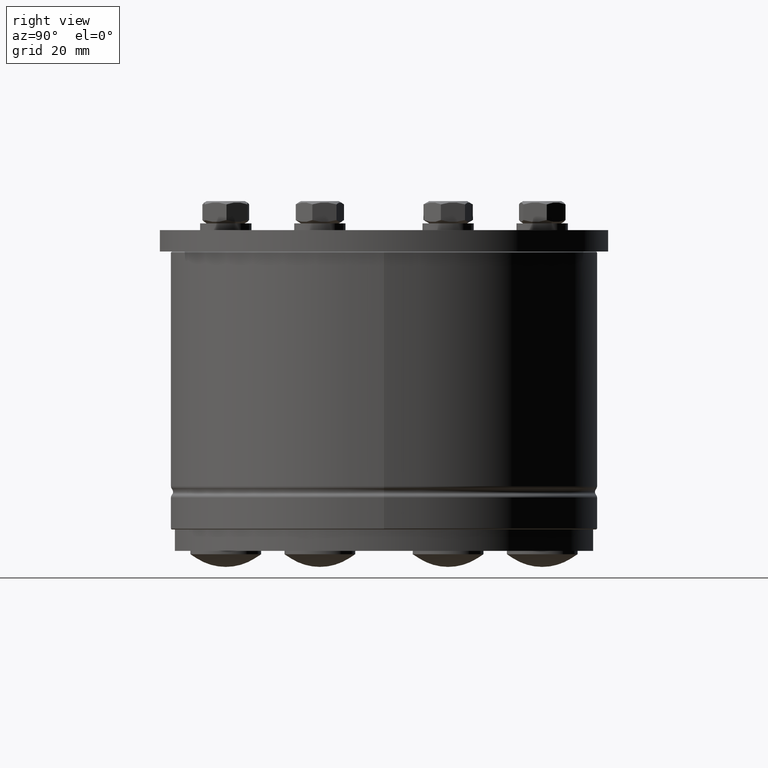
[diagram: clean part render]
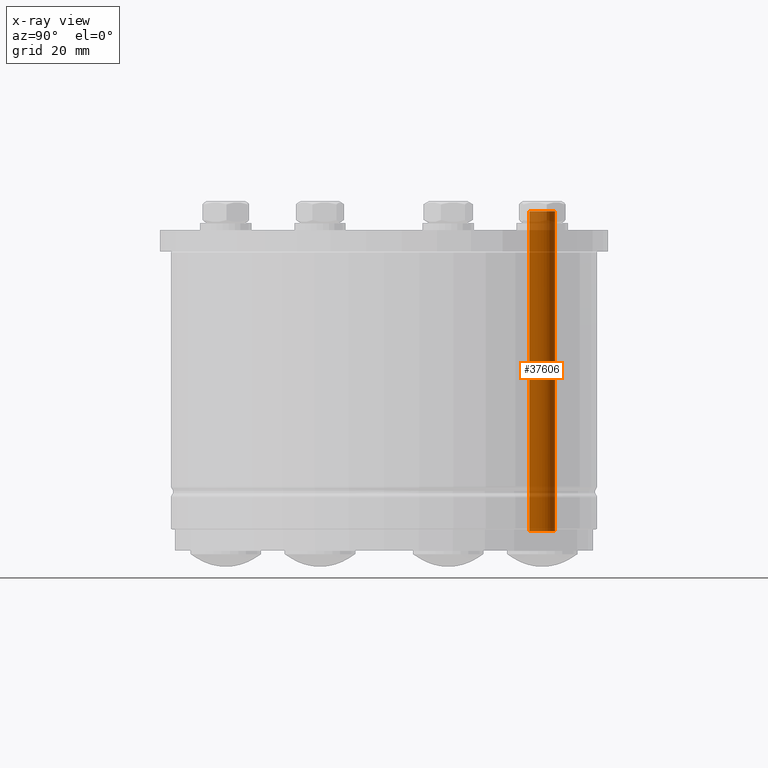
[diagram: x-ray — body ghosted, one internal face saturated and labeled with its STEP entity id]
A machine part, right view, then the same camera in x-ray: the body is ghosted and one INTERNAL B-rep face — a face not visible from any outside direction — is saturated and labeled: STEP entity #37606.
In plain terms, the highlighted cylindrical surface (bore or boss wall) has radius 3 mm, axis along (-0, 0, 1).
Its self-contained STEP definition (entity closure, byte-faithful):
#37537=CARTESIAN_POINT('',(79.386549999999986,3.000000000000009,3.673819E-016));
#37538=VERTEX_POINT('',#37537);
#37539=CARTESIAN_POINT('',(79.386549999999986,-7.830199E-031,0.0));
#37540=DIRECTION('',(1.0,0.0,0.0));
#37541=DIRECTION('',(0.0,-1.0,0.0));
#37542=AXIS2_PLACEMENT_3D('',#37539,#37540,#37541);
#37543=CIRCLE('',#37542,3.000000000000009);
#37544=EDGE_CURVE('',#37538,#37538,#37543,.T.);
#37560=CARTESIAN_POINT('',(71.0,-7.041547E-031,0.0));
#37561=DIRECTION('',(1.0,-9.403775E-033,0.0));
#37562=DIRECTION('',(0.0,1.0,0.0));
#37563=AXIS2_PLACEMENT_3D('',#37560,#37561,#37562);
#37564=CYLINDRICAL_SURFACE('',#37563,3.000000000000009);
#37565=CARTESIAN_POINT('',(4.600000000000003,-2.775558E-016,2.999999999999998));
#37566=VERTEX_POINT('',#37565);
#37567=CARTESIAN_POINT('',(4.600000000000003,-2.999999999999994,0.0));
#37568=VERTEX_POINT('',#37567);
#37569=CARTESIAN_POINT('',(4.6,-7.974402E-032,0.0));
#37570=DIRECTION('',(1.0,0.0,0.0));
#37571=DIRECTION('',(0.0,1.0,0.0));
#37572=AXIS2_PLACEMENT_3D('',#37569,#37570,#37571);
#37573=CIRCLE('',#37572,3.000000000000009);
#37574=EDGE_CURVE('',#37566,#37568,#37573,.T.);
#37575=ORIENTED_EDGE('',*,*,#37574,.T.);
#37576=CARTESIAN_POINT('',(4.600000000000003,3.673940E-016,-2.999999999999996));
#37577=VERTEX_POINT('',#37576);
#37578=CARTESIAN_POINT('',(4.6,-7.974402E-032,0.0));
#37579=DIRECTION('',(1.0,0.0,0.0));
#37580=DIRECTION('',(0.0,1.0,0.0));
#37581=AXIS2_PLACEMENT_3D('',#37578,#37579,#37580);
#37582=CIRCLE('',#37581,3.000000000000009);
#37583=EDGE_CURVE('',#37568,#37577,#37582,.T.);
#37584=ORIENTED_EDGE('',*,*,#37583,.T.);
#37585=CARTESIAN_POINT('',(4.600000000000003,3.0,0.0));
#37586=VERTEX_POINT('',#37585);
#37587=CARTESIAN_POINT('',(4.6,-7.974402E-032,0.0));
#37588=DIRECTION('',(1.0,0.0,0.0));
#37589=DIRECTION('',(0.0,1.0,0.0));
#37590=AXIS2_PLACEMENT_3D('',#37587,#37588,#37589);
#37591=CIRCLE('',#37590,3.000000000000009);
#37592=EDGE_CURVE('',#37577,#37586,#37591,.T.);
#37593=ORIENTED_EDGE('',*,*,#37592,.T.);
#37594=CARTESIAN_POINT('',(4.6,-7.974402E-032,0.0));
#37595=DIRECTION('',(1.0,0.0,0.0));
#37596=DIRECTION('',(0.0,1.0,0.0));
#37597=AXIS2_PLACEMENT_3D('',#37594,#37595,#37596);
#37598=CIRCLE('',#37597,3.000000000000009);
#37599=EDGE_CURVE('',#37586,#37566,#37598,.T.);
#37600=ORIENTED_EDGE('',*,*,#37599,.T.);
#37601=EDGE_LOOP('',(#37575,#37584,#37593,#37600));
#37602=FACE_OUTER_BOUND('',#37601,.T.);
#37603=ORIENTED_EDGE('',*,*,#37544,.F.);
#37604=EDGE_LOOP('',(#37603));
#37605=FACE_BOUND('',#37604,.T.);
#37606=ADVANCED_FACE('',(#37602,#37605),#37564,.T.);